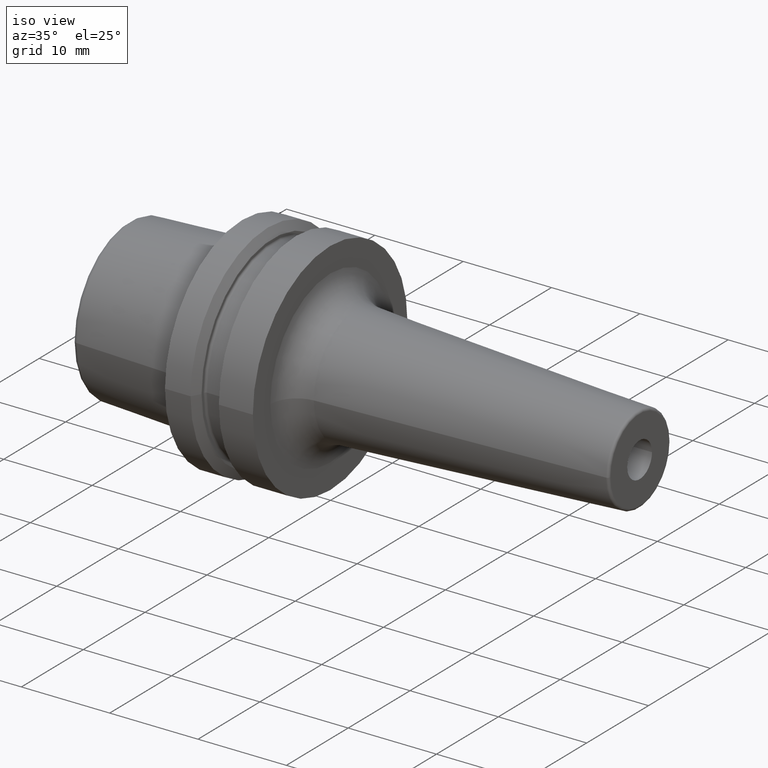
[diagram: clean part render]
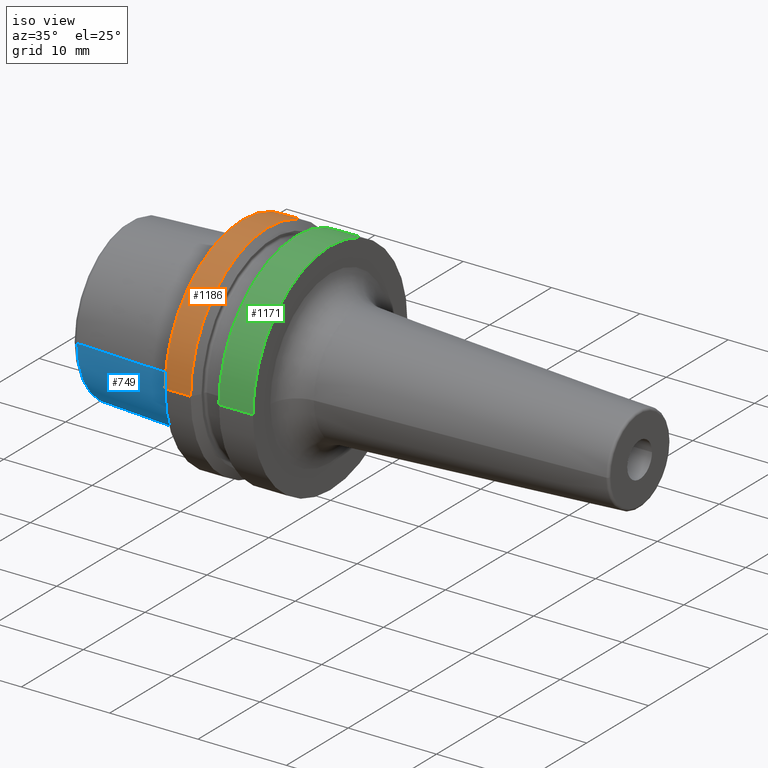
[diagram: same view with three faces highlighted in distinct colors, each labeled with its STEP entity id]
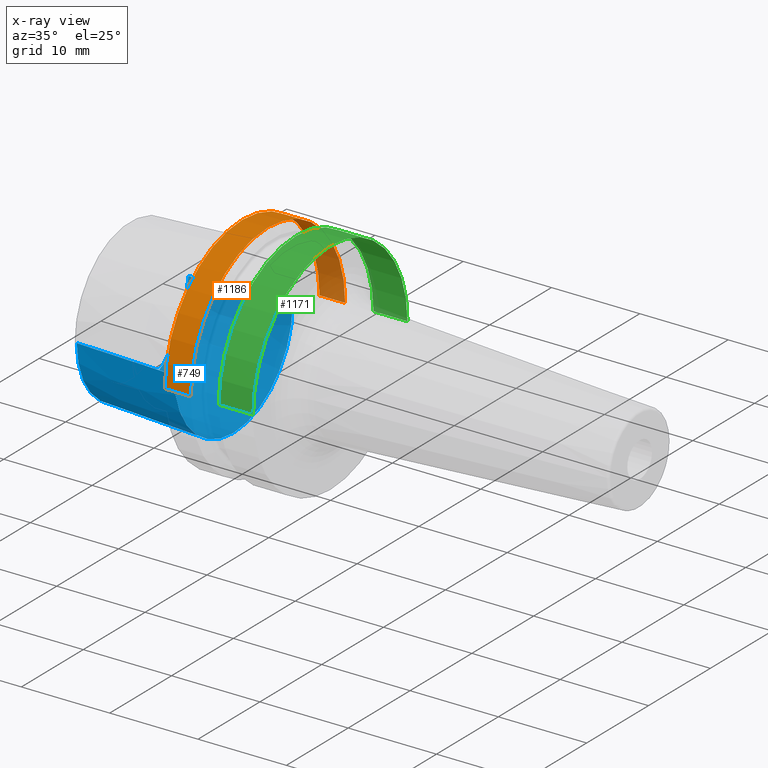
[diagram: x-ray of the same camera — body ghosted, the three highlighted faces saturated]
A machine part, iso view with three faces highlighted in distinct colors.
The next image is the same camera in x-ray (body ghosted, the three faces saturated) — at least one of them is partly hidden behind the body in this view.
Their STEP definitions:

[orange] entity #1186 — the highlighted cylindrical surface (partial cylindrical patch) has radius 12.5 mm, axis along (1, 0, 0).
#294=CARTESIAN_POINT('',(0.E0,0.E0,0.E0));
#295=DIRECTION('',(1.E0,0.E0,0.E0));
#296=DIRECTION('',(0.E0,1.E0,0.E0));
#297=AXIS2_PLACEMENT_3D('',#294,#295,#296);
#324=CARTESIAN_POINT('',(2.897853002999E0,0.E0,0.E0));
#325=DIRECTION('',(1.E0,0.E0,0.E0));
#326=DIRECTION('',(0.E0,1.E0,0.E0));
#327=AXIS2_PLACEMENT_3D('',#324,#325,#326);
#456=DIRECTION('',(-1.E0,0.E0,0.E0));
#457=VECTOR('',#456,2.897853002999E0);
#458=CARTESIAN_POINT('',(2.897853002999E0,1.25E1,0.E0));
#459=LINE('',#458,#457);
#460=DIRECTION('',(-1.E0,0.E0,0.E0));
#461=VECTOR('',#460,2.897853002999E0);
#462=CARTESIAN_POINT('',(2.897853002999E0,-1.25E1,0.E0));
#463=LINE('',#462,#461);
#626=CARTESIAN_POINT('',(2.897853002999E0,1.25E1,0.E0));
#627=VERTEX_POINT('',#626);
#630=CARTESIAN_POINT('',(2.897853002999E0,-1.25E1,0.E0));
#631=VERTEX_POINT('',#630);
#636=CARTESIAN_POINT('',(0.E0,1.25E1,0.E0));
#637=CARTESIAN_POINT('',(0.E0,-1.25E1,0.E0));
#638=VERTEX_POINT('',#636);
#639=VERTEX_POINT('',#637);
#1172=CARTESIAN_POINT('',(-1.40425E1,0.E0,0.E0));
#1173=DIRECTION('',(1.E0,0.E0,0.E0));
#1174=DIRECTION('',(0.E0,-1.E0,0.E0));
#1175=AXIS2_PLACEMENT_3D('',#1172,#1173,#1174);
#1176=CYLINDRICAL_SURFACE('',#1175,1.25E1);
#1178=ORIENTED_EDGE('',*,*,#1177,.T.);
#1180=ORIENTED_EDGE('',*,*,#1179,.T.);
#1181=ORIENTED_EDGE('',*,*,#1145,.F.);
#1183=ORIENTED_EDGE('',*,*,#1182,.F.);
#1184=EDGE_LOOP('',(#1178,#1180,#1181,#1183));
#1185=FACE_OUTER_BOUND('',#1184,.F.);
#1186=ADVANCED_FACE('',(#1185),#1176,.T.);
#298=CIRCLE('',#297,1.25E1);
#328=CIRCLE('',#327,1.25E1);
#1145=EDGE_CURVE('',#638,#639,#298,.T.);
#1177=EDGE_CURVE('',#627,#631,#328,.T.);
#1179=EDGE_CURVE('',#631,#639,#463,.T.);
#1182=EDGE_CURVE('',#627,#638,#459,.T.);

[blue] entity #749 — the highlighted conical surface has half-angle 2.845 deg.
#25=CARTESIAN_POINT('',(-1.E0,0.E0,0.E0));
#26=DIRECTION('',(1.E0,0.E0,0.E0));
#27=DIRECTION('',(0.E0,-1.E0,0.E0));
#28=AXIS2_PLACEMENT_3D('',#25,#26,#27);
#30=DIRECTION('',(-9.987676191710E-1,-4.963106784496E-2,0.E0));
#31=VECTOR('',#30,1.143891263055E1);
#32=CARTESIAN_POINT('',(-1.E0,9.577538461538E0,0.E0));
#33=LINE('',#32,#31);
#34=DIRECTION('',(-9.987676191710E-1,4.963106784496E-2,0.E0));
#35=VECTOR('',#34,1.143891263055E1);
#36=CARTESIAN_POINT('',(-1.E0,-9.577538461538E0,0.E0));
#37=LINE('',#36,#35);
#48=CARTESIAN_POINT('',(-1.242481553392E1,0.E0,0.E0));
#49=DIRECTION('',(-1.E0,0.E0,0.E0));
#50=DIRECTION('',(0.E0,1.E0,0.E0));
#51=AXIS2_PLACEMENT_3D('',#48,#49,#50);
#576=CARTESIAN_POINT('',(-1.E0,9.577538461538E0,0.E0));
#577=CARTESIAN_POINT('',(-1.E0,-9.577538461538E0,0.E0));
#578=VERTEX_POINT('',#576);
#579=VERTEX_POINT('',#577);
#580=CARTESIAN_POINT('',(-1.242481553392E1,9.009813012699E0,0.E0));
#581=VERTEX_POINT('',#580);
#582=CARTESIAN_POINT('',(-1.242481553392E1,-9.009813012699E0,0.E0));
#583=VERTEX_POINT('',#582);
#737=CARTESIAN_POINT('',(-6.712407766961E0,0.E0,0.E0));
#738=DIRECTION('',(1.E0,0.E0,0.E0));
#739=DIRECTION('',(0.E0,-1.E0,0.E0));
#740=AXIS2_PLACEMENT_3D('',#737,#738,#739);
#741=CONICAL_SURFACE('',#740,9.293675737119E0,2.844819449936E0);
#742=ORIENTED_EDGE('',*,*,#728,.T.);
#743=ORIENTED_EDGE('',*,*,#703,.T.);
#745=ORIENTED_EDGE('',*,*,#744,.T.);
#746=ORIENTED_EDGE('',*,*,#699,.F.);
#747=EDGE_LOOP('',(#742,#743,#745,#746));
#748=FACE_OUTER_BOUND('',#747,.F.);
#749=ADVANCED_FACE('',(#748),#741,.T.);
#29=CIRCLE('',#28,9.577538461538E0);
#52=CIRCLE('',#51,9.009813012699E0);
#699=EDGE_CURVE('',#579,#583,#37,.T.);
#703=EDGE_CURVE('',#578,#581,#33,.T.);
#728=EDGE_CURVE('',#579,#578,#29,.T.);
#744=EDGE_CURVE('',#581,#583,#52,.T.);

[green] entity #1171 — the highlighted cylindrical surface (partial cylindrical patch) has radius 12.5 mm, axis along (1, 0, 0).
#314=CARTESIAN_POINT('',(6.102146997001E0,0.E0,0.E0));
#315=DIRECTION('',(1.E0,0.E0,0.E0));
#316=DIRECTION('',(0.E0,1.E0,0.E0));
#317=AXIS2_PLACEMENT_3D('',#314,#315,#316);
#319=CARTESIAN_POINT('',(9.95E0,0.E0,0.E0));
#320=DIRECTION('',(1.E0,0.E0,0.E0));
#321=DIRECTION('',(0.E0,1.E0,0.E0));
#322=AXIS2_PLACEMENT_3D('',#319,#320,#321);
#438=DIRECTION('',(-1.E0,0.E0,0.E0));
#439=VECTOR('',#438,3.847853002999E0);
#440=CARTESIAN_POINT('',(9.95E0,-1.25E1,0.E0));
#441=LINE('',#440,#439);
#447=DIRECTION('',(-1.E0,0.E0,0.E0));
#448=VECTOR('',#447,3.847853002999E0);
#449=CARTESIAN_POINT('',(9.95E0,1.25E1,0.E0));
#450=LINE('',#449,#448);
#624=CARTESIAN_POINT('',(6.102146997001E0,1.25E1,0.E0));
#625=VERTEX_POINT('',#624);
#628=CARTESIAN_POINT('',(6.102146997001E0,-1.25E1,0.E0));
#629=VERTEX_POINT('',#628);
#632=CARTESIAN_POINT('',(9.95E0,1.25E1,0.E0));
#633=CARTESIAN_POINT('',(9.95E0,-1.25E1,0.E0));
#634=VERTEX_POINT('',#632);
#635=VERTEX_POINT('',#633);
#1156=CARTESIAN_POINT('',(-1.40425E1,0.E0,0.E0));
#1157=DIRECTION('',(1.E0,0.E0,0.E0));
#1158=DIRECTION('',(0.E0,-1.E0,0.E0));
#1159=AXIS2_PLACEMENT_3D('',#1156,#1157,#1158);
#1160=CYLINDRICAL_SURFACE('',#1159,1.25E1);
#1162=ORIENTED_EDGE('',*,*,#1161,.F.);
#1164=ORIENTED_EDGE('',*,*,#1163,.F.);
#1166=ORIENTED_EDGE('',*,*,#1165,.T.);
#1168=ORIENTED_EDGE('',*,*,#1167,.T.);
#1169=EDGE_LOOP('',(#1162,#1164,#1166,#1168));
#1170=FACE_OUTER_BOUND('',#1169,.F.);
#1171=ADVANCED_FACE('',(#1170),#1160,.T.);
#318=CIRCLE('',#317,1.25E1);
#323=CIRCLE('',#322,1.25E1);
#1161=EDGE_CURVE('',#625,#629,#318,.T.);
#1163=EDGE_CURVE('',#634,#625,#450,.T.);
#1165=EDGE_CURVE('',#634,#635,#323,.T.);
#1167=EDGE_CURVE('',#635,#629,#441,.T.);